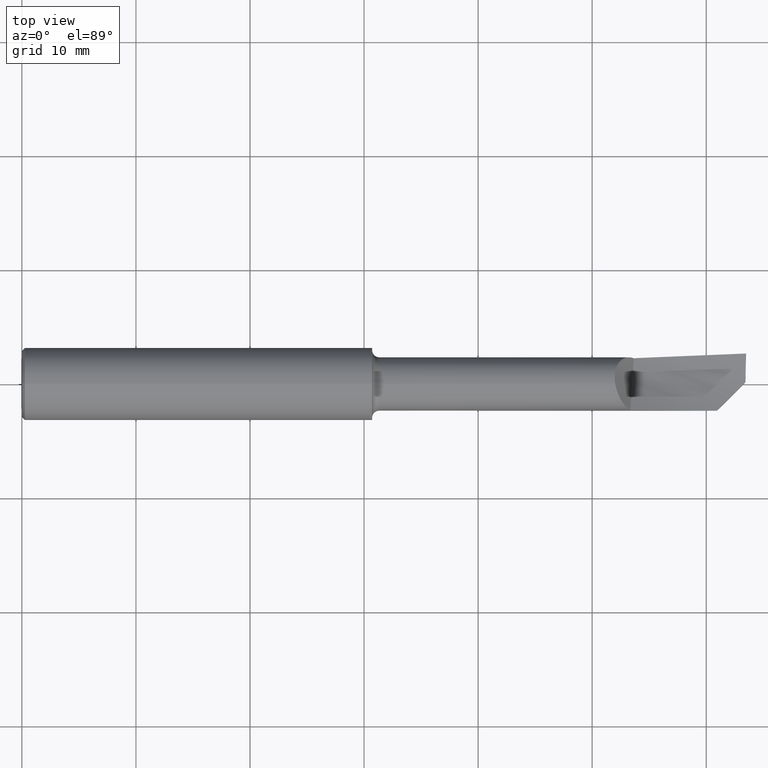
[diagram: clean part render]
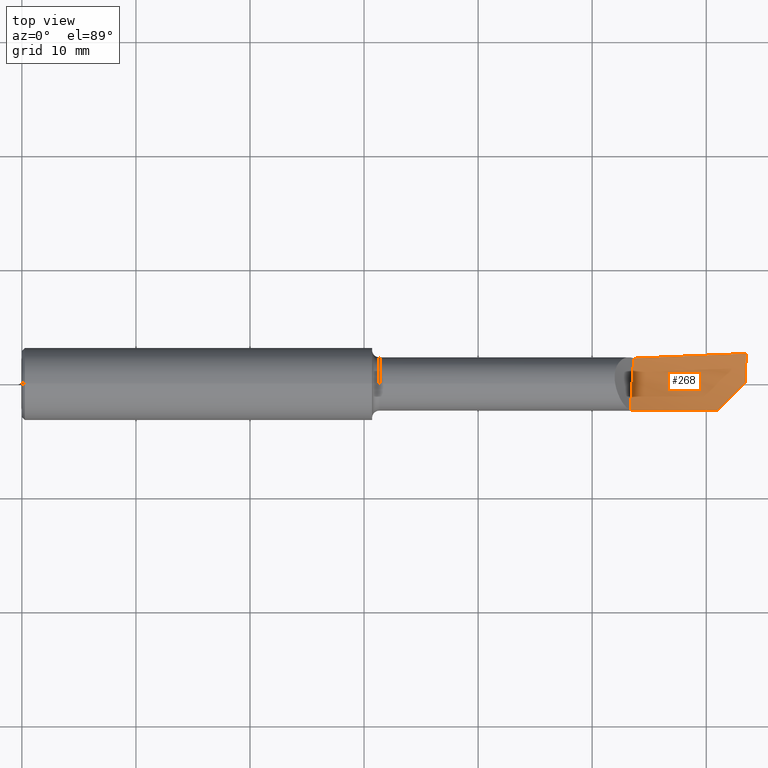
[diagram: same view with one face highlighted and labeled with its STEP entity id]
A machine part, top view. The second image highlights one B-rep face of the part: STEP entity #268.
In plain terms, the highlighted face is a freeform B-spline surface patch.
Its self-contained STEP definition (entity closure, byte-faithful):
#1 = CARTESIAN_POINT ( 'NONE',  ( 1.812666666666668203, 0.1692320603815770930, -0.05466611626099807802 ) ) ;
#6 = CARTESIAN_POINT ( 'NONE',  ( 2.041777777777778358, -0.06463100845323596633, -0.004147875681276347488 ) ) ;
#10 = CARTESIAN_POINT ( 'NONE',  ( 2.041777777777778802, -0.1620295639055862602, 0.06880203030876089199 ) ) ;
#22 = CARTESIAN_POINT ( 'NONE',  ( 2.498105852030231944, 0.03982996995073795343, -0.01077648217461518385 ) ) ;
#33 = CARTESIAN_POINT ( 'NONE',  ( 2.109728201757894439, 0.05835192853738405128, -0.02303726912454236858 ) ) ;
#41 =( BOUNDED_SURFACE ( )  B_SPLINE_SURFACE ( 3, 2, ( 
 ( #238, #353, #10, #77, #722 ),
 ( #533, #601, #6, #487, #247 ),
 ( #470, #184, #243, #478, #414 ),
 ( #476, #653, #116, #1, #177 ) ),
 .UNSPECIFIED., .F., .F., .F. ) 
 B_SPLINE_SURFACE_WITH_KNOTS ( ( 4, 4 ),
 ( 3, 2, 3 ),
 ( 0.000000000000000000, 1.000000000000000000 ),
 ( 0.000000000000000000, 0.5000000000000000000, 1.000000000000000000 ),
 .UNSPECIFIED. ) 
 GEOMETRIC_REPRESENTATION_ITEM ( )  RATIONAL_B_SPLINE_SURFACE ( (
 ( 1.000000000000000000, 0.9898214418809326842, 1.000000000000000000, 0.9898214418809326842, 1.000000000000000000),
 ( 0.9579078231528690424, 0.9481577027021983461, 0.9579078231528690424, 0.9481577027021983461, 0.9579078231528690424),
 ( 0.9579078231528690424, 0.9481577027021983461, 0.9579078231528690424, 0.9481577027021983461, 0.9579078231528690424),
 ( 1.000000000000000000, 0.9898214418809326842, 1.000000000000000000, 0.9898214418809326842, 1.000000000000000000) ) ) 
 REPRESENTATION_ITEM ( '' )  SURFACE ( )  );
#56 = CARTESIAN_POINT ( 'NONE',  ( 2.120000000000000107, 0.08990917335082526662, -0.02421779605015241671 ) ) ;
#57 = CARTESIAN_POINT ( 'NONE',  ( 2.111665809954995865, 0.08915496014083672260, -0.02465041748704987698 ) ) ;
#61 = ORIENTED_EDGE ( 'NONE', *, *, #528, .T. ) ;
#76 = EDGE_CURVE ( 'NONE', #197, #321, #498, .T. ) ;
#77 = CARTESIAN_POINT ( 'NONE',  ( 1.812666666666668203, -0.1521373253644021650, 0.09209836458385559088 ) ) ;
#101 = CARTESIAN_POINT ( 'NONE',  ( 2.099985204774065028, -0.09024474448373209778, 0.02030113526544562522 ) ) ;
#110 = CARTESIAN_POINT ( 'NONE',  ( 2.120000000000000107, 0.08928196195395607382, -0.02418638603949730542 ) ) ;
#116 = CARTESIAN_POINT ( 'NONE',  ( 2.041777777777778802, 0.1735051289674032771, -0.02971984481868702316 ) ) ;
#127 = VERTEX_POINT ( 'NONE', #343 ) ;
#137 = B_SPLINE_CURVE_WITH_KNOTS ( 'NONE', 3,
 ( #194, #670, #588, #56 ),
 .UNSPECIFIED., .F., .F.,
 ( 4, 4 ),
 ( 2.686746494871500227E-21, 0.009679675726453004087 ),
 .UNSPECIFIED. ) ;
#170 = CARTESIAN_POINT ( 'NONE',  ( 2.398761991375083724, -0.09244204618670318063, 0.003273850457099876637 ) ) ;
#172 = VERTEX_POINT ( 'NONE', #57 ) ;
#177 = CARTESIAN_POINT ( 'NONE',  ( 1.583555555555557826, 0.1581039042606014744, -0.07739802588953197116 ) ) ;
#180 = CARTESIAN_POINT ( 'NONE',  ( 2.249186691865721954, -0.09213690762715877336, 0.01188989238826932381 ) ) ;
#184 = CARTESIAN_POINT ( 'NONE',  ( 2.270888888888889845, 0.05765417977062659016, -0.03093662185290534800 ) ) ;
#191 = ORIENTED_EDGE ( 'NONE', *, *, #674, .T. ) ;
#194 = CARTESIAN_POINT ( 'NONE',  ( 2.500000000000000000, 0.1052499999999999686, 0.000000000000000000 ) ) ;
#197 = VERTEX_POINT ( 'NONE', #698 ) ;
#238 = CARTESIAN_POINT ( 'NONE',  ( 2.500000000000000000, -0.1748499999999999499, 0.02036606132864511934 ) ) ;
#243 = CARTESIAN_POINT ( 'NONE',  ( 2.041777777777778358, 0.05212855329269719395, -0.03843157631375539868 ) ) ;
#247 = CARTESIAN_POINT ( 'NONE',  ( 1.583555555555557381, -0.06318159010964548294, 0.01422880169115912398 ) ) ;
#268 = ADVANCED_FACE ( 'NONE', ( #320 ), #41, .T. ) ;
#281 = EDGE_LOOP ( 'NONE', ( #650, #191, #750, #764, #61, #379, #705 ) ) ;
#320 = FACE_OUTER_BOUND ( 'NONE', #281, .T. ) ;
#321 = VERTEX_POINT ( 'NONE', #671 ) ;
#322 = CARTESIAN_POINT ( 'NONE',  ( 2.398761991375083724, -0.09244204618670318063, 0.003273850457099876637 ) ) ;
#323 = EDGE_CURVE ( 'NONE', #350, #428, #460, .T. ) ;
#343 = CARTESIAN_POINT ( 'NONE',  ( 2.120000000000000107, 0.08990917335082526662, -0.02421779605015241671 ) ) ;
#350 = VERTEX_POINT ( 'NONE', #322 ) ;
#353 = CARTESIAN_POINT ( 'NONE',  ( 2.270888888888888957, -0.1719218024467703554, 0.04550569603366619309 ) ) ;
#378 = CARTESIAN_POINT ( 'NONE',  ( 2.099985204774065028, -0.09024474448373209778, 0.02030113526544562522 ) ) ;
#379 = ORIENTED_EDGE ( 'NONE', *, *, #323, .F. ) ;
#383 = CARTESIAN_POINT ( 'NONE',  ( 2.498847675109613586, 0.07274798056255336876, -0.007074594563097086342 ) ) ;
#396 = CARTESIAN_POINT ( 'NONE',  ( 2.115831856367703434, 0.08921906441239114971, -0.02441856689959861354 ) ) ;
#400 = CARTESIAN_POINT ( 'NONE',  ( 2.497767342160548854, 0.006563304598762102239, -0.01116899279488216615 ) ) ;
#403 = CARTESIAN_POINT ( 'NONE',  ( 2.120000000000000107, 0.08990917335082526662, -0.02421779605015241324 ) ) ;
#405 = CARTESIAN_POINT ( 'NONE',  ( 2.099985204774065028, -0.09024474448373209778, 0.02030113526544562522 ) ) ;
#414 = CARTESIAN_POINT ( 'NONE',  ( 1.583555555555557381, 0.03918955435071098253, -0.05156113804157395203 ) ) ;
#428 = VERTEX_POINT ( 'NONE', #378 ) ;
#434 = CARTESIAN_POINT ( 'NONE',  ( 2.120000000000000551, 0.08949102992630660058, -0.02419698754576702499 ) ) ;
#460 =( BOUNDED_CURVE ( )  B_SPLINE_CURVE ( 2, ( #717, #180, #405 ),
 .UNSPECIFIED., .F., .T. ) 
 B_SPLINE_CURVE_WITH_KNOTS ( ( 3, 3 ),
 ( 0.1109587072986240042, 0.4360622139891772719 ),
 .UNSPECIFIED. ) 
 CURVE ( )  GEOMETRIC_REPRESENTATION_ITEM ( )  RATIONAL_B_SPLINE_CURVE ( ( 0.9734215292658963126, 0.9698259248218302764, 0.9746374891455962253 ) ) 
 REPRESENTATION_ITEM ( '' )  );
#470 = CARTESIAN_POINT ( 'NONE',  ( 2.500000000000000444, 0.06084440686735265169, -0.02218851683438133673 ) ) ;
#476 = CARTESIAN_POINT ( 'NONE',  ( 2.500000000000000000, 0.1748499999999998666, 0.02036606132864511934 ) ) ;
#478 = CARTESIAN_POINT ( 'NONE',  ( 1.812666666666668869, 0.04660292681476783244, -0.04592653077460544936 ) ) ;
#487 = CARTESIAN_POINT ( 'NONE',  ( 1.812666666666668869, -0.06522738294239313617, 0.005144660453304620955 ) ) ;
#498 = B_SPLINE_CURVE_WITH_KNOTS ( 'NONE', 3,
 ( #688, #383, #22, #623 ),
 .UNSPECIFIED., .F., .F.,
 ( 4, 4 ),
 ( 8.292191760819323082E-18, 0.002523290404141616088 ),
 .UNSPECIFIED. ) ;
#515 =( BOUNDED_CURVE ( )  B_SPLINE_CURVE ( 3, ( #586, #434, #681, #403 ),
 .UNSPECIFIED., .F., .T. ) 
 B_SPLINE_CURVE_WITH_KNOTS ( ( 4, 4 ),
 ( 0.005175778614820833803, 0.005191721417056123847 ),
 .UNSPECIFIED. ) 
 CURVE ( )  GEOMETRIC_REPRESENTATION_ITEM ( )  RATIONAL_B_SPLINE_CURVE ( ( 0.9740275819911479172, 0.9740656182505580407, 0.9741037836849223419, 0.9741420782942408207 ) ) 
 REPRESENTATION_ITEM ( '' )  );
#523 = CARTESIAN_POINT ( 'NONE',  ( 2.464380513559167429, -0.02682352400261893421, -0.01169628508488581263 ) ) ;
#528 = EDGE_CURVE ( 'NONE', #172, #428, #668, .T. ) ;
#533 = CARTESIAN_POINT ( 'NONE',  ( 2.500000000000000444, -0.06084440686735272802, -0.02218851683438132980 ) ) ;
#574 = CARTESIAN_POINT ( 'NONE',  ( 2.107791904823273388, 0.02744776930478207838, -0.01842625771583333849 ) ) ;
#576 = CARTESIAN_POINT ( 'NONE',  ( 2.111665809954995865, 0.08915496014083672260, -0.02465041748704987698 ) ) ;
#579 = CARTESIAN_POINT ( 'NONE',  ( 2.111665809954995865, 0.08915496014083672260, -0.02465041748704987698 ) ) ;
#586 = CARTESIAN_POINT ( 'NONE',  ( 2.120000000000000107, 0.08928196195395607382, -0.02418638603949730542 ) ) ;
#587 = EDGE_CURVE ( 'NONE', #172, #637, #704, .T. ) ;
#588 = CARTESIAN_POINT ( 'NONE',  ( 2.246698480951583754, 0.09595842451396570383, -0.01731511377960634826 ) ) ;
#601 = CARTESIAN_POINT ( 'NONE',  ( 2.270888888888889845, -0.06403463396407883812, -0.01344041181585731853 ) ) ;
#614 = EDGE_CURVE ( 'NONE', #321, #350, #734, .T. ) ;
#623 = CARTESIAN_POINT ( 'NONE',  ( 2.497767342160548854, 0.006563304598762102239, -0.01116899279488216615 ) ) ;
#632 = CARTESIAN_POINT ( 'NONE',  ( 2.101985182368761862, -0.06232069977107383696, 0.007196703789060790273 ) ) ;
#637 = VERTEX_POINT ( 'NONE', #110 ) ;
#643 = CARTESIAN_POINT ( 'NONE',  ( 2.119999999999999662, 0.08928196195395607382, -0.02418638603949730542 ) ) ;
#650 = ORIENTED_EDGE ( 'NONE', *, *, #76, .F. ) ;
#653 = CARTESIAN_POINT ( 'NONE',  ( 2.270888888888888957, 0.1777781975532294612, -0.004773573376375951811 ) ) ;
#668 = B_SPLINE_CURVE_WITH_KNOTS ( 'NONE', 3,
 ( #579, #33, #574, #693, #632, #101 ),
 .UNSPECIFIED., .F., .F.,
 ( 4, 2, 4 ),
 ( 0.000000000000000000, 0.5000000000000000000, 1.000000000000000000 ),
 .UNSPECIFIED. ) ;
#670 = CARTESIAN_POINT ( 'NONE',  ( 2.373370140592598876, 0.1012041265267809576, -0.009235010046400874556 ) ) ;
#671 = CARTESIAN_POINT ( 'NONE',  ( 2.497767342160548854, 0.006563304598762102239, -0.01116899279488216615 ) ) ;
#674 = EDGE_CURVE ( 'NONE', #197, #127, #137, .T. ) ;
#681 = CARTESIAN_POINT ( 'NONE',  ( 2.120000000000000551, 0.08970010041975085002, -0.02420745754555480439 ) ) ;
#688 = CARTESIAN_POINT ( 'NONE',  ( 2.500000000000000000, 0.1052499999999999686, 0.000000000000000000 ) ) ;
#693 = CARTESIAN_POINT ( 'NONE',  ( 2.103920395128665799, -0.03289320846274089438, -0.003308102619573058487 ) ) ;
#698 = CARTESIAN_POINT ( 'NONE',  ( 2.500000000000000000, 0.1052499999999999686, 0.000000000000000000 ) ) ;
#704 =( BOUNDED_CURVE ( )  B_SPLINE_CURVE ( 2, ( #576, #396, #643 ),
 .UNSPECIFIED., .F., .T. ) 
 B_SPLINE_CURVE_WITH_KNOTS ( ( 3, 3 ),
 ( 0.5767193966733749066, 0.5858306181482756392 ),
 .UNSPECIFIED. ) 
 CURVE ( )  GEOMETRIC_REPRESENTATION_ITEM ( )  RATIONAL_B_SPLINE_CURVE ( ( 0.9742721459605732104, 0.9741465623362280946, 0.9740275819911483612 ) ) 
 REPRESENTATION_ITEM ( '' )  );
#705 = ORIENTED_EDGE ( 'NONE', *, *, #614, .F. ) ;
#717 = CARTESIAN_POINT ( 'NONE',  ( 2.398761991375083724, -0.09244204618670318063, 0.003273850457099876637 ) ) ;
#722 = CARTESIAN_POINT ( 'NONE',  ( 1.583555555555557826, -0.1360824561704624680, 0.1116640679746904036 ) ) ;
#734 = B_SPLINE_CURVE_WITH_KNOTS ( 'NONE', 3,
 ( #400, #523, #765, #170 ),
 .UNSPECIFIED., .F., .F.,
 ( 4, 4 ),
 ( 7.967431483338750613E-05, 0.003654915943233829484 ),
 .UNSPECIFIED. ) ;
#750 = ORIENTED_EDGE ( 'NONE', *, *, #758, .F. ) ;
#758 = EDGE_CURVE ( 'NONE', #637, #127, #515, .T. ) ;
#764 = ORIENTED_EDGE ( 'NONE', *, *, #587, .F. ) ;
#765 = CARTESIAN_POINT ( 'NONE',  ( 2.431375663624378181, -0.05982837393740834953, -0.006924542088340215895 ) ) ;